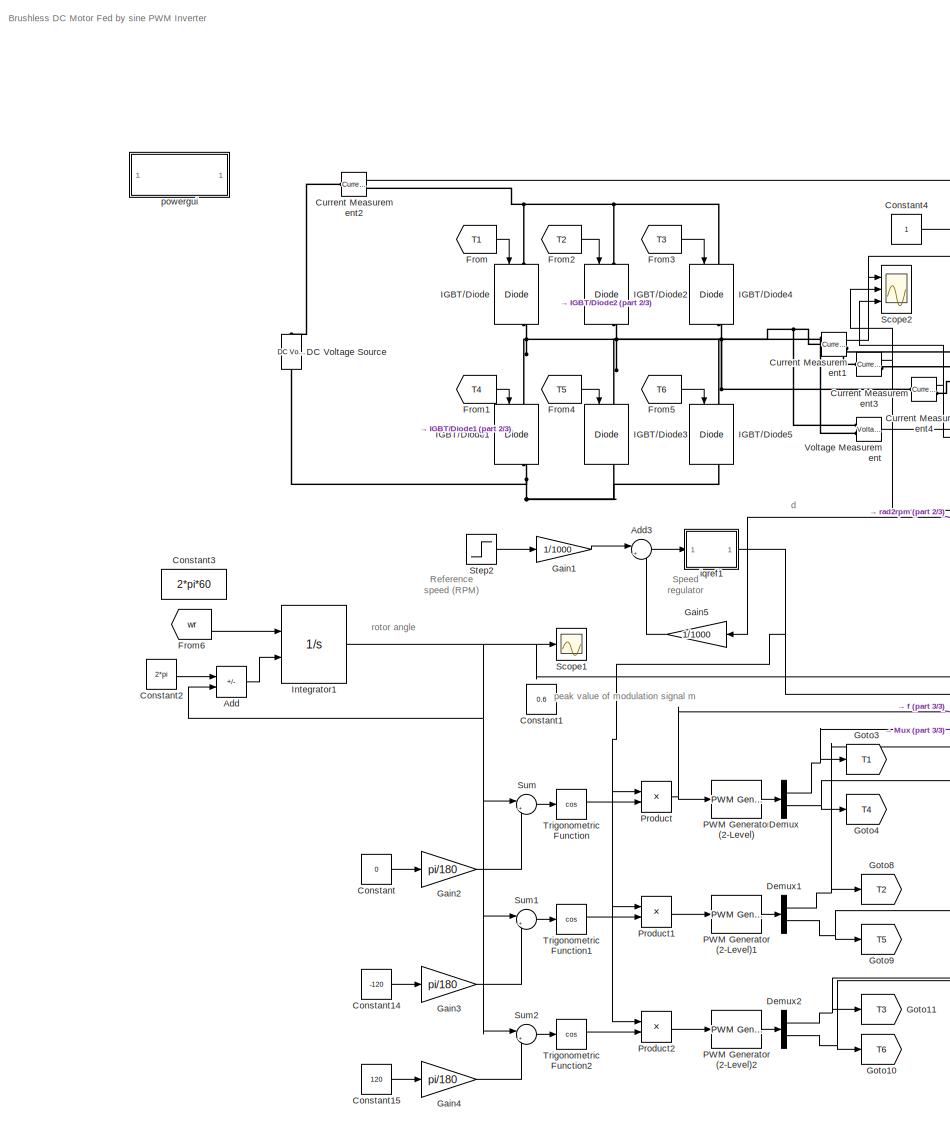
[diagram: root canvas - part 1/3, left side, full height]
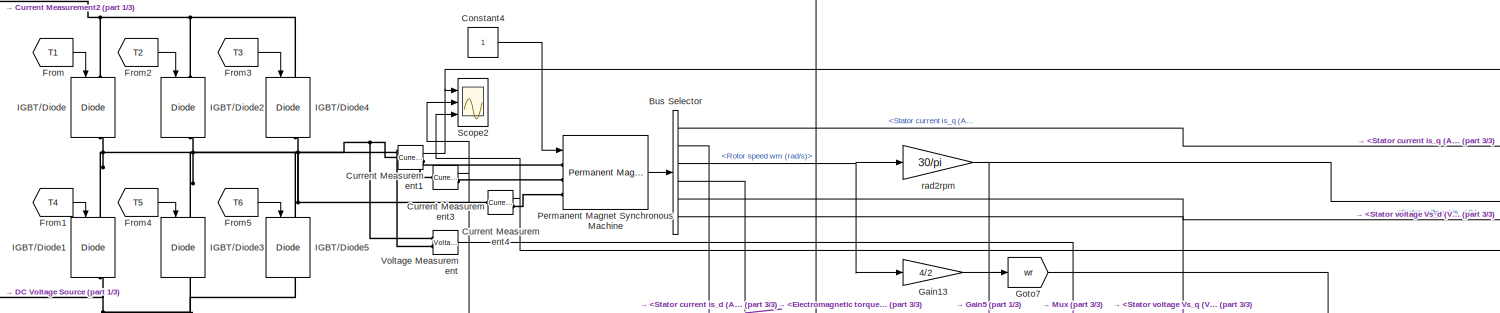
[diagram: root canvas - part 2/3, top center region]
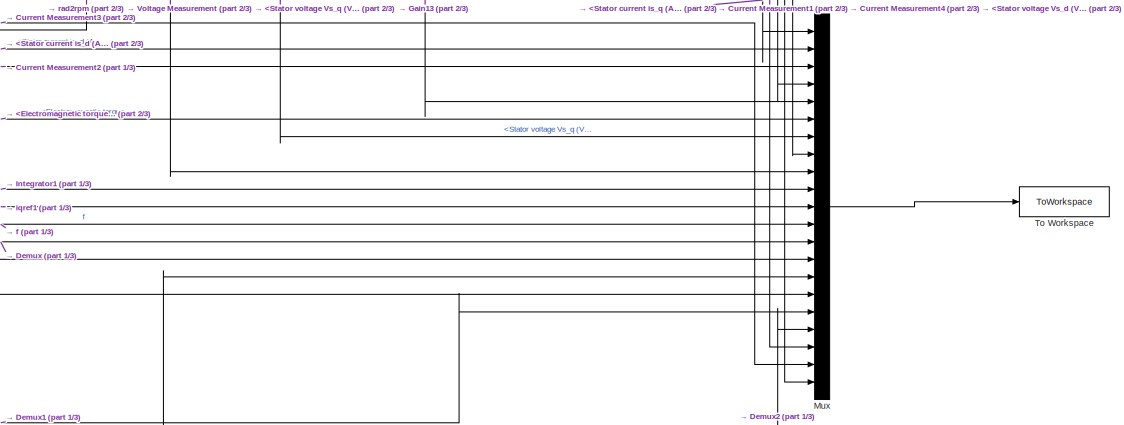
[diagram: root canvas - part 3/3, middle right region]
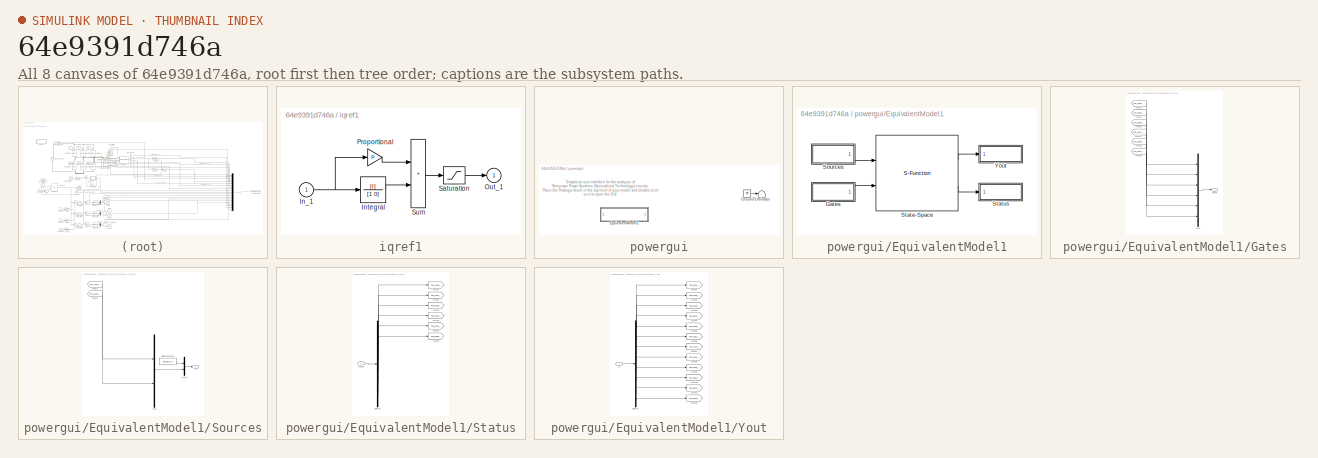
[diagram: thumbnail index - all 8 canvases of the model, root first then tree order]
MODEL slx_64e9391d746a
KIND model
CONFIG AbsTol = 1e-6
CONFIG EnableMultiTasking = on
CONFIG FixedStep = 5e-6
CONFIG MaxStep = 1e-6
CONFIG MinStep = auto
CONFIG PreLoadFcn = assignin('base','Ts',[5e-6])
CONFIG RelTol = 1e-6
CONFIG SampleTimeConstraint = Unconstrained
CONFIG Solver = ode4
CONFIG SolverName = ode4
CONFIG StartTime = 0
CONFIG StopTime = 1
BLOCK [Sum] Add
  IconShape = rectangular
  Inputs = +-
  Ports = [2, 1]
BLOCK [Sum] Add3
  Inputs = |+-
  Ports = [2, 1]
BLOCK [BusSelector] Bus Selector
  OutputSignals = Stator current is_q (A),Stator current is_d (A),Rotor speed wm (rad/s),Electromagnetic torque Te (N*m),Stator voltage Vs_q (V),Stator voltage Vs_d (V)
  Ports = [1, 6]
BLOCK [Constant] Constant
  Value = 0
BLOCK [Constant] Constant1
  Value = 0.6
BLOCK [Constant] Constant14
  Value = -120
BLOCK [Constant] Constant15
  Value = 120
BLOCK [Constant] Constant2
  Value = 2*pi
BLOCK [Constant] Constant3
  Value = 2*pi*60
BLOCK [Constant] Constant4
BLOCK [Reference] Current Measurement1  REF=powerlib/Measurements/Current Measurement
  Ports = [0, 1, 0, 0, 0, 1, 1]
  SourceBlock = powerlib/Measurements/Current Measurement
  SourceProductBaseCode = PS
  SourceType = Current Measurement
  UserDataPersistent = on
BLOCK [Reference] Current Measurement2  REF=powerlib/Measurements/Current Measurement
  Ports = [0, 1, 0, 0, 0, 1, 1]
  SourceBlock = powerlib/Measurements/Current Measurement
  SourceProductBaseCode = PS
  SourceType = Current Measurement
  UserDataPersistent = on
BLOCK [Reference] Current Measurement3  REF=powerlib/Measurements/Current Measurement
  Ports = [0, 1, 0, 0, 0, 1, 1]
  SourceBlock = powerlib/Measurements/Current Measurement
  SourceProductBaseCode = PS
  SourceType = Current Measurement
  UserDataPersistent = on
BLOCK [Reference] Current Measurement4  REF=powerlib/Measurements/Current Measurement
  Ports = [0, 1, 0, 0, 0, 1, 1]
  SourceBlock = powerlib/Measurements/Current Measurement
  SourceProductBaseCode = PS
  SourceType = Current Measurement
  UserDataPersistent = on
BLOCK [Reference] DC Voltage Source  REF=powerlib/Electrical
Sources/DC Voltage Source
  Ports = [0, 0, 0, 0, 0, 1, 1]
  SourceBlock = powerlib/Electrical\nSources/DC Voltage Source
  SourceProductBaseCode = PS
  SourceType = DC Voltage Source
BLOCK [Demux] Demux
  Outputs = 2
  Ports = [1, 2]
BLOCK [Demux] Demux1
  Outputs = 2
  Ports = [1, 2]
BLOCK [Demux] Demux2
  Outputs = 2
  Ports = [1, 2]
BLOCK [From] From
  GotoTag = T1
BLOCK [From] From1
  GotoTag = T4
BLOCK [From] From2
  GotoTag = T2
BLOCK [From] From3
  GotoTag = T3
BLOCK [From] From4
  GotoTag = T5
BLOCK [From] From5
  GotoTag = T6
BLOCK [From] From6
  GotoTag = wr
BLOCK [Gain] Gain1
  Gain = 1/1000
BLOCK [Gain] Gain13
  Gain = 4/2
BLOCK [Gain] Gain2
  Gain = pi/180
BLOCK [Gain] Gain3
  Gain = pi/180
BLOCK [Gain] Gain4
  Gain = pi/180
BLOCK [Gain] Gain5
  Gain = 1/1000
BLOCK [Goto] Goto10
  GotoTag = T6
BLOCK [Goto] Goto11
  GotoTag = T3
BLOCK [Goto] Goto3
  GotoTag = T1
BLOCK [Goto] Goto4
  GotoTag = T4
BLOCK [Goto] Goto7
  GotoTag = wr
BLOCK [Goto] Goto8
  GotoTag = T2
BLOCK [Goto] Goto9
  GotoTag = T5
BLOCK [Reference] IGBT//Diode  REF=powerlib/Power
Electronics/IGBT//Diode
  Ports = [1, 1, 0, 0, 0, 1, 1]
  SourceBlock = powerlib/Power\nElectronics/IGBT//Diode
  SourceProductBaseCode = PS
  SourceType = IGBT/Diode
BLOCK [Reference] IGBT//Diode1  REF=powerlib/Power
Electronics/IGBT//Diode
  Ports = [1, 1, 0, 0, 0, 1, 1]
  SourceBlock = powerlib/Power\nElectronics/IGBT//Diode
  SourceProductBaseCode = PS
  SourceType = IGBT/Diode
BLOCK [Reference] IGBT//Diode2  REF=powerlib/Power
Electronics/IGBT//Diode
  Ports = [1, 1, 0, 0, 0, 1, 1]
  SourceBlock = powerlib/Power\nElectronics/IGBT//Diode
  SourceProductBaseCode = PS
  SourceType = IGBT/Diode
BLOCK [Reference] IGBT//Diode3  REF=powerlib/Power
Electronics/IGBT//Diode
  Ports = [1, 1, 0, 0, 0, 1, 1]
  SourceBlock = powerlib/Power\nElectronics/IGBT//Diode
  SourceProductBaseCode = PS
  SourceType = IGBT/Diode
BLOCK [Reference] IGBT//Diode4  REF=powerlib/Power
Electronics/IGBT//Diode
  Ports = [1, 1, 0, 0, 0, 1, 1]
  SourceBlock = powerlib/Power\nElectronics/IGBT//Diode
  SourceProductBaseCode = PS
  SourceType = IGBT/Diode
BLOCK [Reference] IGBT//Diode5  REF=powerlib/Power
Electronics/IGBT//Diode
  Ports = [1, 1, 0, 0, 0, 1, 1]
  SourceBlock = powerlib/Power\nElectronics/IGBT//Diode
  SourceProductBaseCode = PS
  SourceType = IGBT/Diode
BLOCK [Integrator] Integrator1
  ExternalReset = falling
  Ports = [2, 1]
BLOCK [Mux] Mux
  DisplayOption = bar
  Inputs = 21
  Ports = [21, 1]
BLOCK [Reference] PWM Generator (2-Level)  REF=powerlib_meascontrol/Pulse & Signal
Generators/PWM Generator
(2-Level)
  Ports = [1, 1]
  SourceBlock = powerlib_meascontrol/Pulse & Signal\nGenerators/PWM Generator\n(2-Level)
  SourceProductBaseCode = PS
  SourceType = PWM Generator (2-Level)
BLOCK [Reference] PWM Generator (2-Level)1  REF=powerlib_meascontrol/Pulse & Signal
Generators/PWM Generator
(2-Level)
  Ports = [1, 1]
  SourceBlock = powerlib_meascontrol/Pulse & Signal\nGenerators/PWM Generator\n(2-Level)
  SourceProductBaseCode = PS
  SourceType = PWM Generator (2-Level)
BLOCK [Reference] PWM Generator (2-Level)2  REF=powerlib_meascontrol/Pulse & Signal
Generators/PWM Generator
(2-Level)
  Ports = [1, 1]
  SourceBlock = powerlib_meascontrol/Pulse & Signal\nGenerators/PWM Generator\n(2-Level)
  SourceProductBaseCode = PS
  SourceType = PWM Generator (2-Level)
BLOCK [Reference] Permanent Magnet Synchronous Machine  REF=powerlib/Machines/Permanent Magnet
Synchronous Machine
  Ports = [1, 1, 0, 0, 0, 3]
  SourceBlock = powerlib/Machines/Permanent Magnet\nSynchronous Machine
  SourceProductBaseCode = PS
  SourceType = Permanent Magnet Synchronous Machine
BLOCK [Product] Product
  Ports = [2, 1]
BLOCK [Product] Product1
  Ports = [2, 1]
BLOCK [Product] Product2
  Ports = [2, 1]
BLOCK [Scope] Scope1
  Floating = off
  NumInputPorts = 1
  Ports = [1]
  ScopeSpecificationString = Simulink.scopes.TimeScopeBlockCfg('CurrentConfiguration', extmgr.ConfigurationSet(extmgr.Configuration('Core','General UI',true),extmgr.Configuration('Core','Source UI',true),extmgr.Configuration('Sources','WiredSimulink',true,'DataLoggingVariableName','ScopeData1'),extmgr.Configuration('Visuals','Time Domain',true,'SerializedDisplays',{struct('MinYLimReal','-0.78508','MaxYLimReal','7.06576','YLab...<+1418ch>
BLOCK [Scope] Scope2
  Floating = off
  NumInputPorts = 3
  Ports = [3]
  ScopeSpecificationString = Simulink.scopes.TimeScopeBlockCfg('CurrentConfiguration', extmgr.ConfigurationSet(extmgr.Configuration('Core','General UI',true),extmgr.Configuration('Core','Source UI',true),extmgr.Configuration('Sources','WiredSimulink',true,'DataLoggingVariableName','ScopeData1'),extmgr.Configuration('Visuals','Time Domain',true,'SerializedDisplays',{struct('MinYLimReal','-1.92905','MaxYLimReal','4.65877','YLab...<+2848ch>
BLOCK [Step] Step2
  After = 400
  Before = 600
  SampleTime = 0
  Time = 0.5
BLOCK [Sum] Sum
  Inputs = |++
  Ports = [2, 1]
BLOCK [Sum] Sum1
  Inputs = |++
  Ports = [2, 1]
BLOCK [Sum] Sum2
  Inputs = |++
  Ports = [2, 1]
BLOCK [ToWorkspace] To Workspace
  FixptAsFi = on
  MaxDataPoints = inf
  Ports = [1]
  SampleTime = -1
  SaveFormat = Timeseries
  VariableName = simout
BLOCK [Trigonometry] Trigonometric Function
  Operator = cos
  Ports = [1, 1]
BLOCK [Trigonometry] Trigonometric Function1
  Operator = cos
  Ports = [1, 1]
BLOCK [Trigonometry] Trigonometric Function2
  Operator = cos
  Ports = [1, 1]
BLOCK [Reference] Voltage Measurement  REF=powerlib/Measurements/Voltage Measurement
  Ports = [0, 1, 0, 0, 0, 2]
  SourceBlock = powerlib/Measurements/Voltage Measurement
  SourceProductBaseCode = PS
  SourceType = Voltage Measurement
BLOCK [SubSystem] iqref1
  Ports = [1, 1]
  RequestExecContextInheritance = off
BLOCK [Inport] iqref1/In_1
BLOCK [TransferFcn] iqref1/Integral
  Denominator = [1 0]
  Numerator = [I]
BLOCK [Outport] iqref1/Out_1
  InitialOutput = 0
  VectorParamsAs1DForOutWhenUnconnected = off
BLOCK [Gain] iqref1/Proportional
  Gain = P
  OutDataTypeStr = Inherit: Same as input
  ParamDataTypeStr = Inherit: Same as input
  SaturateOnIntegerOverflow = on
BLOCK [Saturate] iqref1/Saturation
  LowerLimit = min
  UpperLimit = max
BLOCK [Sum] iqref1/Sum
  IconShape = rectangular
  InputSameDT = on
  OutDataTypeStr = Inherit: Same as first input
  Ports = [2, 1]
  SaturateOnIntegerOverflow = on
BLOCK [SubSystem] powergui
  AncestorBlock = powerlib/powergui
  DialogController = POWERSYS.PowerSysDialog
  InitFcn = powergui( 'InitFcn_Callback' , gcb , 0 , [ ] );
  OpenFcn = sps_rtmsupport('OpenFcn',gcbh)
  Ports = []
  PreSaveFcn = powergui( 'PreSaveFcn_Callback' , gcb , [ ] , [ ] );
  Priority = 2
  RequestExecContextInheritance = off
BLOCK [SubSystem] powergui/EquivalentModel1
  Ports = []
  RequestExecContextInheritance = off
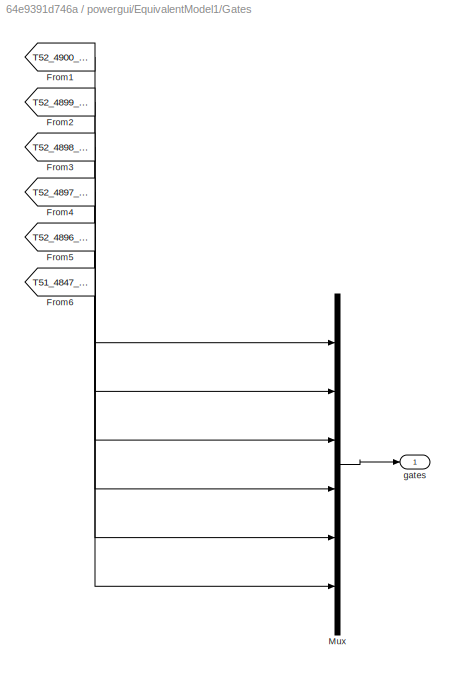
BLOCK [SubSystem] powergui/EquivalentModel1/Gates
  Ports = [0, 1]
  RequestExecContextInheritance = off
BLOCK [From] powergui/EquivalentModel1/Gates/From1
  GotoTag = T52_4900_3614537412319
  TagVisibility = global
BLOCK [From] powergui/EquivalentModel1/Gates/From2
  GotoTag = T52_4899_3614289255698
  TagVisibility = global
BLOCK [From] powergui/EquivalentModel1/Gates/From3
  GotoTag = T52_4898_3614183277538
  TagVisibility = global
BLOCK [From] powergui/EquivalentModel1/Gates/From4
  GotoTag = T52_4897_3614219477839
  TagVisibility = global
BLOCK [From] powergui/EquivalentModel1/Gates/From5
  GotoTag = T52_4896_3614397856603
  TagVisibility = global
BLOCK [From] powergui/EquivalentModel1/Gates/From6
  GotoTag = T51_4847_3606525118902
  TagVisibility = global
BLOCK [Mux] powergui/EquivalentModel1/Gates/Mux
  DisplayOption = bar
  Inputs = [1 1 1 1 1 1]
  Ports = [6, 1]
BLOCK [Outport] powergui/EquivalentModel1/Gates/gates
  VectorParamsAs1DForOutWhenUnconnected = off
BLOCK [SubSystem] powergui/EquivalentModel1/Sources
  Ports = [0, 1]
  RequestExecContextInheritance = off
BLOCK [From] powergui/EquivalentModel1/Sources/From1
  GotoTag = T76_7478_9525876458456
  TagVisibility = global
BLOCK [From] powergui/EquivalentModel1/Sources/From2
  GotoTag = T57_5520_5159158440758
  TagVisibility = global
BLOCK [Mux] powergui/EquivalentModel1/Sources/Mux
  DisplayOption = bar
  Inputs = [2 1]
  Ports = [2, 1]
BLOCK [Mux] powergui/EquivalentModel1/Sources/Mux_u
  DisplayOption = bar
  Inputs = [6 3]
  Ports = [2, 1]
BLOCK [Constant] powergui/EquivalentModel1/Sources/SwitchCurrents
  Value = zeros(6,1)
BLOCK [Outport] powergui/EquivalentModel1/Sources/u
  VectorParamsAs1DForOutWhenUnconnected = off
BLOCK [S-Function] powergui/EquivalentModel1/State-Space
  EnableBusSupport = off
  FunctionName = sfun_spssw_discc
  Parameters = S.Ts,S.A, S.B, S.C, S.D, S.x0, S.EnableUseOfTLC,S.SwitchResistance ,S.SwitchType, S.SwitchGateInitialValue, S.OutputsToResetToZero, S.TBEON,S.SaveMatrices,S.BufferSize
  Ports = [2, 2]
  SFcnIsStateOwnerBlock = off
  SFunctionDeploymentMode = off
BLOCK [SubSystem] powergui/EquivalentModel1/Status
  Ports = [1]
  RequestExecContextInheritance = off
BLOCK [Demux] powergui/EquivalentModel1/Status/Demux
  Outputs = [1 1 1 1 1 1]
  Ports = [1, 6]
BLOCK [Goto] powergui/EquivalentModel1/Status/Goto1
  GotoTag = T54_5135_4339879870566
  TagVisibility = global
BLOCK [Goto] powergui/EquivalentModel1/Status/Goto2
  GotoTag = T54_5134_4340068320825
  TagVisibility = global
BLOCK [Goto] powergui/EquivalentModel1/Status/Goto3
  GotoTag = T54_5133_4340393683676
  TagVisibility = global
BLOCK [Goto] powergui/EquivalentModel1/Status/Goto4
  GotoTag = T54_5132_4340855959119
  TagVisibility = global
BLOCK [Goto] powergui/EquivalentModel1/Status/Goto5
  GotoTag = T54_5131_4341455147156
  TagVisibility = global
BLOCK [Goto] powergui/EquivalentModel1/Status/Goto6
  GotoTag = T53_5082_4296787490856
  TagVisibility = global
BLOCK [Inport] powergui/EquivalentModel1/Status/status
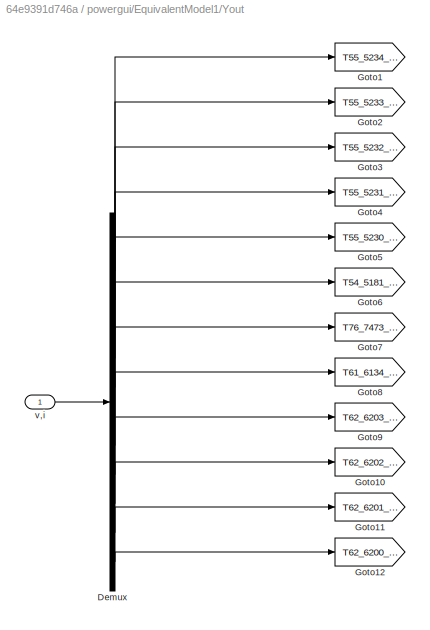
BLOCK [SubSystem] powergui/EquivalentModel1/Yout
  Ports = [1]
  RequestExecContextInheritance = off
BLOCK [Demux] powergui/EquivalentModel1/Yout/Demux
  Outputs = [1 1 1 1 1 1 2 1 1 1 1 1]
  Ports = [1, 12]
BLOCK [Goto] powergui/EquivalentModel1/Yout/Goto1
  GotoTag = T55_5234_4477273881259
  TagVisibility = global
BLOCK [Goto] powergui/EquivalentModel1/Yout/Goto10
  GotoTag = T62_6202_6576267356859
  TagVisibility = global
BLOCK [Goto] powergui/EquivalentModel1/Yout/Goto11
  GotoTag = T62_6201_6577332796520
  TagVisibility = global
BLOCK [Goto] powergui/EquivalentModel1/Yout/Goto12
  GotoTag = T62_6200_6578561766504
  TagVisibility = global
BLOCK [Goto] powergui/EquivalentModel1/Yout/Goto2
  GotoTag = T55_5233_4477611044896
  TagVisibility = global
BLOCK [Goto] powergui/EquivalentModel1/Yout/Goto3
  GotoTag = T55_5232_4478082631805
  TagVisibility = global
BLOCK [Goto] powergui/EquivalentModel1/Yout/Goto4
  GotoTag = T55_5231_4478688641987
  TagVisibility = global
BLOCK [Goto] powergui/EquivalentModel1/Yout/Goto5
  GotoTag = T55_5230_4479429075441
  TagVisibility = global
BLOCK [Goto] powergui/EquivalentModel1/Yout/Goto6
  GotoTag = T54_5181_4423238397764
  TagVisibility = global
BLOCK [Goto] powergui/EquivalentModel1/Yout/Goto7
  GotoTag = T76_7473_9455110778026
  TagVisibility = global
BLOCK [Goto] powergui/EquivalentModel1/Yout/Goto8
  GotoTag = T61_6134_6447817140721
  TagVisibility = global
BLOCK [Goto] powergui/EquivalentModel1/Yout/Goto9
  GotoTag = T62_6203_6575365447520
  TagVisibility = global
BLOCK [Inport] powergui/EquivalentModel1/Yout/v,i
BLOCK [Ground] powergui/Ground
BLOCK [Terminator] powergui/Terminator
BLOCK [Gain] rad2rpm
  Gain = 30/pi
ANNOTATION (root): Brushless DC Motor Fed by sine PWM Inverter
ANNOTATION (root): Reference speed (RPM)
ANNOTATION (root): Speed regulator
ANNOTATION (root): d
ANNOTATION (root): peak value of modulation signal m
ANNOTATION (root): rotor angle
ANNOTATION powergui: Graphical user interface for the analysis of Simscape Power Systems (Specialized Technology) circuits. Place the Powergui block in the top-level of your model and double-click on it to open the GUI.
LINE Add3:1 -> iqref1:1
LINE Add:1 -> Integrator1:2
LINE Bus Selector:1 -> Mux:1
LINE Bus Selector:2 -> Mux:2
NET Bus Selector:3 -> Gain13:1, rad2rpm:1
LINE Bus Selector:4 -> Mux:6
LINE Bus Selector:5 -> Mux:7
LINE Bus Selector:6 -> Mux:8
LINE Constant14:1 -> Gain3:1
LINE Constant15:1 -> Gain4:1
LINE Constant2:1 -> Add:1
LINE Constant4:1 -> Permanent Magnet Synchronous Machine:1
LINE Constant:1 -> Gain2:1
NET Current Measurement1:1 -> Mux:19, Scope2:1
LINE Current Measurement2:1 -> Mux:3
NET Current Measurement3:1 -> Mux:20, Scope2:2
NET Current Measurement4:1 -> Mux:21, Scope2:3
NET Demux1:1 -> Goto8:1, Mux:14
NET Demux1:2 -> Goto9:1, Mux:17
NET Demux2:1 -> Goto11:1, Mux:15
NET Demux2:2 -> Goto10:1, Mux:18
NET Demux:1 -> Goto3:1, Mux:13
NET Demux:2 -> Goto4:1, Mux:16
LINE From1:1 -> IGBT//Diode1:1
LINE From2:1 -> IGBT//Diode2:1
LINE From3:1 -> IGBT//Diode4:1
LINE From4:1 -> IGBT//Diode3:1
LINE From5:1 -> IGBT//Diode5:1
LINE From6:1 -> Integrator1:1
LINE From:1 -> IGBT//Diode:1
NET Gain13:1 -> Goto7:1, Mux:5
LINE Gain1:1 -> Add3:1
LINE Gain2:1 -> Sum:2
LINE Gain3:1 -> Sum1:2
LINE Gain4:1 -> Sum2:2
LINE Gain5:1 -> Add3:2
NET Integrator1:1 -> Add:2, Mux:10, Scope1:1, Sum1:1, Sum2:1, Sum:1
LINE Mux:1 -> To Workspace:1
LINE PWM Generator (2-Level)1:1 -> Demux1:1
LINE PWM Generator (2-Level)2:1 -> Demux2:1
LINE PWM Generator (2-Level):1 -> Demux:1
LINE Permanent Magnet Synchronous Machine:1 -> Bus Selector:1
LINE Product1:1 -> PWM Generator (2-Level)1:1
LINE Product2:1 -> PWM Generator (2-Level)2:1
NET Product:1 -> Mux:12, PWM Generator (2-Level):1
LINE Step2:1 -> Gain1:1
LINE Sum1:1 -> Trigonometric Function1:1
LINE Sum2:1 -> Trigonometric Function2:1
LINE Sum:1 -> Trigonometric Function:1
LINE Trigonometric Function1:1 -> Product1:2
LINE Trigonometric Function2:1 -> Product2:2
LINE Trigonometric Function:1 -> Product:2
LINE Voltage Measurement:1 -> Mux:9
NET iqref1/In_1:1 -> iqref1/Integral:1, iqref1/Proportional:1
LINE iqref1/Integral:1 -> iqref1/Sum:2
LINE iqref1/Proportional:1 -> iqref1/Sum:1
LINE iqref1/Saturation:1 -> iqref1/Out_1:1
LINE iqref1/Sum:1 -> iqref1/Saturation:1
NET iqref1:1 -> Mux:11, Product1:1, Product2:1, Product:1
NET rad2rpm:1 -> Gain5:1, Mux:4
PNET net1: Current Measurement1:LConn1 -- IGBT//Diode1:LConn1 -- IGBT//Diode:RConn1 -- Voltage Measurement:LConn1
PLINE Current Measurement1:RConn1 -- Permanent Magnet Synchronous Machine:LConn1
PLINE Current Measurement2:LConn1 -- DC Voltage Source:RConn1
PNET net2: Current Measurement2:RConn1 -- IGBT//Diode2:LConn1 -- IGBT//Diode4:LConn1 -- IGBT//Diode:LConn1
PNET net3: Current Measurement3:LConn1 -- IGBT//Diode2:RConn1 -- IGBT//Diode3:LConn1 -- Voltage Measurement:LConn2
PLINE Current Measurement3:RConn1 -- Permanent Magnet Synchronous Machine:LConn2
PNET net4: Current Measurement4:LConn1 -- IGBT//Diode4:RConn1 -- IGBT//Diode5:LConn1
PLINE Current Measurement4:RConn1 -- Permanent Magnet Synchronous Machine:LConn3
PNET net5: DC Voltage Source:LConn1 -- IGBT//Diode1:RConn1 -- IGBT//Diode3:RConn1 -- IGBT//Diode5:RConn1
note: NET lines group one-source signal fan-out (src -> all destinations, sorted); 1:1 wires keep LINE; PNET lines group multi-terminal physical nets as a canonical sorted terminal list (undirected conserving connections); 2-terminal nets keep the pairwise PLINE form
